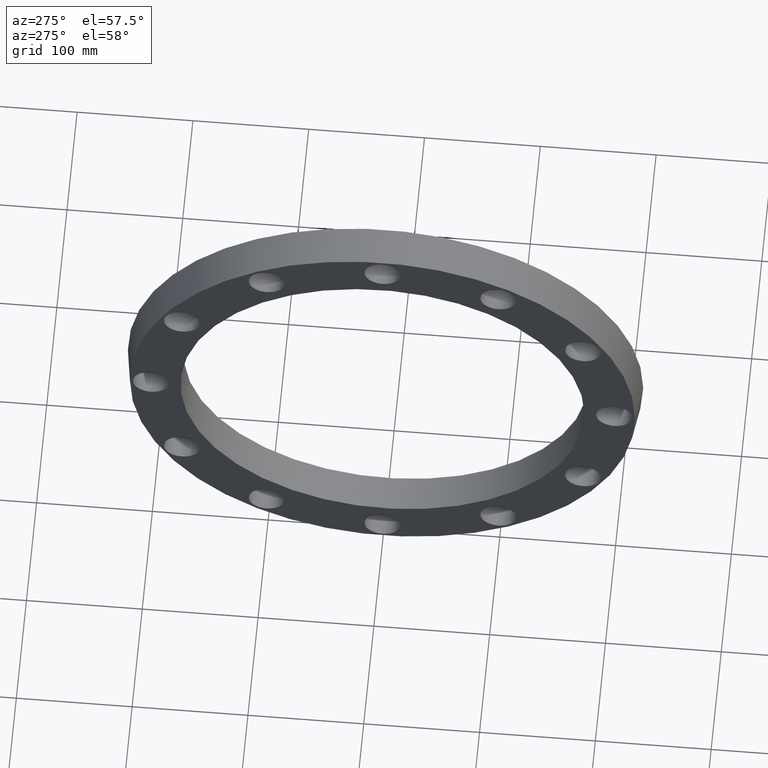
[diagram: clean part render]
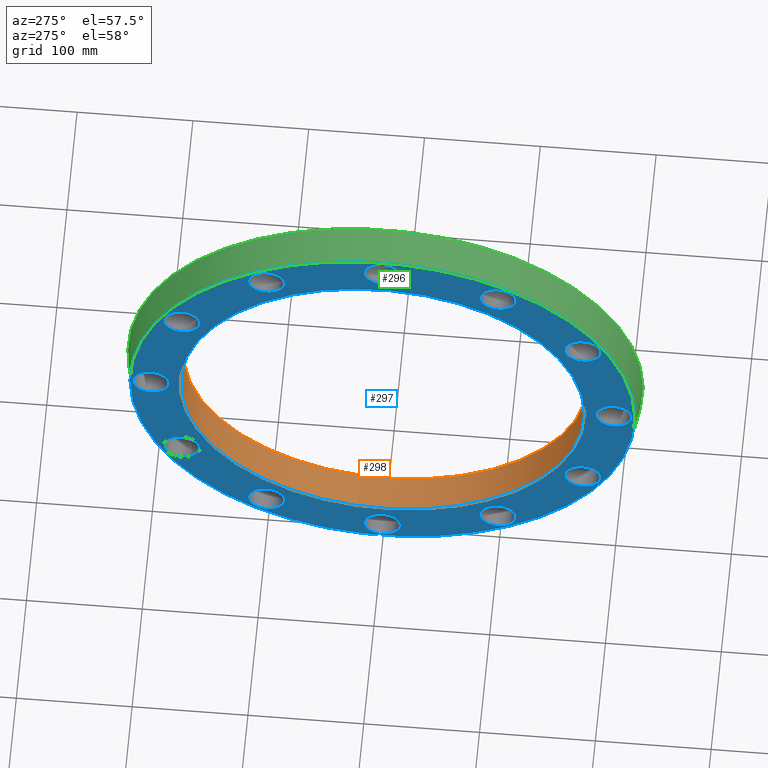
[diagram: same view with three faces highlighted in distinct colors, each labeled with its STEP entity id]
A machine part, auxiliary view with three faces highlighted in distinct colors.
Their STEP definitions:

[orange] entity #298 — the highlighted cylindrical surface (bore or boss wall) has radius 174.5 mm, axis along (-1, 0, 0).
#57=FACE_BOUND('',#129,.T.);
#73=FACE_OUTER_BOUND('',#128,.T.);
#128=EDGE_LOOP('',(#268));
#129=EDGE_LOOP('',(#269));
#155=CIRCLE('',#339,174.5);
#157=CIRCLE('',#343,174.5);
#183=VERTEX_POINT('',#499);
#185=VERTEX_POINT('',#505);
#211=EDGE_CURVE('',#183,#183,#155,.T.);
#213=EDGE_CURVE('',#185,#185,#157,.T.);
#268=ORIENTED_EDGE('',*,*,#211,.F.);
#269=ORIENTED_EDGE('',*,*,#213,.T.);
#282=CYLINDRICAL_SURFACE('',#344,174.5);
#298=ADVANCED_FACE('',(#73,#57),#282,.F.);
#339=AXIS2_PLACEMENT_3D('',#500,#423,#424);
#343=AXIS2_PLACEMENT_3D('',#506,#431,#432);
#344=AXIS2_PLACEMENT_3D('',#507,#433,#434);
#423=DIRECTION('center_axis',(-1.,0.,0.));
#424=DIRECTION('ref_axis',(0.,0.,1.));
#431=DIRECTION('center_axis',(-1.,0.,0.));
#432=DIRECTION('ref_axis',(0.,0.,1.));
#433=DIRECTION('center_axis',(-1.,0.,0.));
#434=DIRECTION('ref_axis',(0.,-1.,0.));
#499=CARTESIAN_POINT('',(15.5,-174.5,0.));
#500=CARTESIAN_POINT('Origin',(15.5,0.,0.));
#505=CARTESIAN_POINT('',(-15.5,-174.5,0.));
#506=CARTESIAN_POINT('Origin',(-15.5,0.,0.));
#507=CARTESIAN_POINT('Origin',(0.,0.,0.));

[blue] entity #297 — the highlighted planar face has unit normal (-1, 0, 0).
#17=PLANE('',#342);
#44=FACE_BOUND('',#115,.T.);
#45=FACE_BOUND('',#116,.T.);
#46=FACE_BOUND('',#117,.T.);
#47=FACE_BOUND('',#118,.T.);
#48=FACE_BOUND('',#119,.T.);
#49=FACE_BOUND('',#120,.T.);
#50=FACE_BOUND('',#121,.T.);
#51=FACE_BOUND('',#122,.T.);
#52=FACE_BOUND('',#123,.T.);
#53=FACE_BOUND('',#124,.T.);
#54=FACE_BOUND('',#125,.T.);
#55=FACE_BOUND('',#126,.T.);
#56=FACE_BOUND('',#127,.T.);
#72=FACE_OUTER_BOUND('',#114,.T.);
#114=EDGE_LOOP('',(#254));
#115=EDGE_LOOP('',(#255));
#116=EDGE_LOOP('',(#256));
#117=EDGE_LOOP('',(#257));
#118=EDGE_LOOP('',(#258));
#119=EDGE_LOOP('',(#259));
#120=EDGE_LOOP('',(#260));
#121=EDGE_LOOP('',(#261));
#122=EDGE_LOOP('',(#262));
#123=EDGE_LOOP('',(#263));
#124=EDGE_LOOP('',(#264));
#125=EDGE_LOOP('',(#265));
#126=EDGE_LOOP('',(#266));
#127=EDGE_LOOP('',(#267));
#130=CIRCLE('',#302,15.5);
#132=CIRCLE('',#305,15.5);
#134=CIRCLE('',#308,15.5);
#136=CIRCLE('',#311,15.5);
#138=CIRCLE('',#314,15.5);
#140=CIRCLE('',#317,15.5);
#142=CIRCLE('',#320,15.5);
#144=CIRCLE('',#323,15.5);
#146=CIRCLE('',#326,15.5);
#148=CIRCLE('',#329,15.5);
#150=CIRCLE('',#332,15.5);
#152=CIRCLE('',#335,15.5);
#156=CIRCLE('',#341,218.05);
#157=CIRCLE('',#343,174.5);
#158=VERTEX_POINT('',#437);
#160=VERTEX_POINT('',#442);
#162=VERTEX_POINT('',#447);
#164=VERTEX_POINT('',#452);
#166=VERTEX_POINT('',#457);
#168=VERTEX_POINT('',#462);
#170=VERTEX_POINT('',#467);
#172=VERTEX_POINT('',#472);
#174=VERTEX_POINT('',#477);
#176=VERTEX_POINT('',#482);
#178=VERTEX_POINT('',#487);
#180=VERTEX_POINT('',#492);
#184=VERTEX_POINT('',#502);
#185=VERTEX_POINT('',#505);
#186=EDGE_CURVE('',#158,#158,#130,.T.);
#188=EDGE_CURVE('',#160,#160,#132,.T.);
#190=EDGE_CURVE('',#162,#162,#134,.T.);
#192=EDGE_CURVE('',#164,#164,#136,.T.);
#194=EDGE_CURVE('',#166,#166,#138,.T.);
#196=EDGE_CURVE('',#168,#168,#140,.T.);
#198=EDGE_CURVE('',#170,#170,#142,.T.);
#200=EDGE_CURVE('',#172,#172,#144,.T.);
#202=EDGE_CURVE('',#174,#174,#146,.T.);
#204=EDGE_CURVE('',#176,#176,#148,.T.);
#206=EDGE_CURVE('',#178,#178,#150,.T.);
#208=EDGE_CURVE('',#180,#180,#152,.T.);
#212=EDGE_CURVE('',#184,#184,#156,.T.);
#213=EDGE_CURVE('',#185,#185,#157,.T.);
#254=ORIENTED_EDGE('',*,*,#212,.T.);
#255=ORIENTED_EDGE('',*,*,#186,.T.);
#256=ORIENTED_EDGE('',*,*,#188,.T.);
#257=ORIENTED_EDGE('',*,*,#190,.T.);
#258=ORIENTED_EDGE('',*,*,#192,.T.);
#259=ORIENTED_EDGE('',*,*,#194,.T.);
#260=ORIENTED_EDGE('',*,*,#196,.T.);
#261=ORIENTED_EDGE('',*,*,#198,.T.);
#262=ORIENTED_EDGE('',*,*,#200,.T.);
#263=ORIENTED_EDGE('',*,*,#202,.T.);
#264=ORIENTED_EDGE('',*,*,#204,.T.);
#265=ORIENTED_EDGE('',*,*,#206,.T.);
#266=ORIENTED_EDGE('',*,*,#208,.T.);
#267=ORIENTED_EDGE('',*,*,#213,.F.);
#297=ADVANCED_FACE('',(#72,#44,#45,#46,#47,#48,#49,#50,#51,#52,#53,#54,
#55,#56),#17,.T.);
#302=AXIS2_PLACEMENT_3D('',#438,#349,#350);
#305=AXIS2_PLACEMENT_3D('',#443,#355,#356);
#308=AXIS2_PLACEMENT_3D('',#448,#361,#362);
#311=AXIS2_PLACEMENT_3D('',#453,#367,#368);
#314=AXIS2_PLACEMENT_3D('',#458,#373,#374);
#317=AXIS2_PLACEMENT_3D('',#463,#379,#380);
#320=AXIS2_PLACEMENT_3D('',#468,#385,#386);
#323=AXIS2_PLACEMENT_3D('',#473,#391,#392);
#326=AXIS2_PLACEMENT_3D('',#478,#397,#398);
#329=AXIS2_PLACEMENT_3D('',#483,#403,#404);
#332=AXIS2_PLACEMENT_3D('',#488,#409,#410);
#335=AXIS2_PLACEMENT_3D('',#493,#415,#416);
#341=AXIS2_PLACEMENT_3D('',#503,#427,#428);
#342=AXIS2_PLACEMENT_3D('',#504,#429,#430);
#343=AXIS2_PLACEMENT_3D('',#506,#431,#432);
#349=DIRECTION('center_axis',(1.,0.,0.));
#350=DIRECTION('ref_axis',(0.,-0.5,0.866025403784438));
#355=DIRECTION('center_axis',(1.,0.,0.));
#356=DIRECTION('ref_axis',(0.,-0.866025403784439,0.499999999999999));
#361=DIRECTION('center_axis',(1.,0.,0.));
#362=DIRECTION('ref_axis',(0.,-1.,-2.14881875733901E-16));
#367=DIRECTION('center_axis',(1.,0.,0.));
#368=DIRECTION('ref_axis',(0.,-0.866025403784438,-0.5));
#373=DIRECTION('center_axis',(1.,0.,0.));
#374=DIRECTION('ref_axis',(0.,-0.5,-0.866025403784439));
#379=DIRECTION('center_axis',(1.,0.,0.));
#380=DIRECTION('ref_axis',(0.,7.16272919113004E-17,-1.));
#385=DIRECTION('center_axis',(1.,0.,0.));
#386=DIRECTION('ref_axis',(0.,0.5,-0.866025403784438));
#391=DIRECTION('center_axis',(1.,0.,0.));
#392=DIRECTION('ref_axis',(0.,0.866025403784439,-0.5));
#397=DIRECTION('center_axis',(1.,0.,0.));
#398=DIRECTION('ref_axis',(0.,1.,7.16272919113004E-17));
#403=DIRECTION('center_axis',(1.,0.,0.));
#404=DIRECTION('ref_axis',(0.,0.866025403784439,0.5));
#409=DIRECTION('center_axis',(1.,0.,0.));
#410=DIRECTION('ref_axis',(0.,0.5,0.866025403784439));
#415=DIRECTION('center_axis',(1.,0.,0.));
#416=DIRECTION('ref_axis',(0.,0.,1.));
#427=DIRECTION('center_axis',(-1.,0.,0.));
#428=DIRECTION('ref_axis',(0.,0.,1.));
#429=DIRECTION('center_axis',(-1.,0.,0.));
#430=DIRECTION('ref_axis',(0.,0.,1.));
#431=DIRECTION('center_axis',(-1.,0.,0.));
#432=DIRECTION('ref_axis',(0.,0.,1.));
#437=CARTESIAN_POINT('',(-15.5,180.955080756888,86.5766062413413));
#438=CARTESIAN_POINT('Origin',(-15.5,173.205080756888,100.));
#442=CARTESIAN_POINT('',(-15.5,113.423393758659,165.455080756888));
#443=CARTESIAN_POINT('Origin',(-15.5,99.9999999999999,173.205080756888));
#447=CARTESIAN_POINT('',(-15.5,15.4999999999999,200.));
#448=CARTESIAN_POINT('Origin',(-15.5,-5.32907051820075E-14,200.));
#452=CARTESIAN_POINT('',(-15.5,-86.5766062413413,180.955080756888));
#453=CARTESIAN_POINT('Origin',(-15.5,-100.,173.205080756888));
#457=CARTESIAN_POINT('',(-15.5,-165.455080756888,113.423393758659));
#458=CARTESIAN_POINT('Origin',(-15.5,-173.205080756888,99.9999999999999));
#462=CARTESIAN_POINT('',(-15.5,-200.,15.5));
#463=CARTESIAN_POINT('Origin',(-15.5,-200.,-3.5527136788005E-14));
#467=CARTESIAN_POINT('',(-15.5,-180.955080756888,-86.5766062413413));
#468=CARTESIAN_POINT('Origin',(-15.5,-173.205080756888,-100.));
#472=CARTESIAN_POINT('',(-15.5,-113.423393758659,-165.455080756888));
#473=CARTESIAN_POINT('Origin',(-15.5,-99.9999999999999,-173.205080756888));
#477=CARTESIAN_POINT('',(-15.5,-15.5,-200.));
#478=CARTESIAN_POINT('Origin',(-15.5,1.77635683940025E-14,-200.));
#482=CARTESIAN_POINT('',(-15.5,86.5766062413412,-180.955080756888));
#483=CARTESIAN_POINT('Origin',(-15.5,100.,-173.205080756888));
#487=CARTESIAN_POINT('',(-15.5,165.455080756888,-113.423393758659));
#488=CARTESIAN_POINT('Origin',(-15.5,173.205080756888,-100.));
#492=CARTESIAN_POINT('',(-15.5,200.,-15.5));
#493=CARTESIAN_POINT('Origin',(-15.5,200.,0.));
#502=CARTESIAN_POINT('',(-15.5,-218.05,0.));
#503=CARTESIAN_POINT('Origin',(-15.5,0.,0.));
#504=CARTESIAN_POINT('Origin',(-15.5,-174.5,0.));
#505=CARTESIAN_POINT('',(-15.5,-174.5,0.));
#506=CARTESIAN_POINT('Origin',(-15.5,0.,0.));

[green] entity #296 — the highlighted conical surface has half-angle 8.169 deg.
#15=CONICAL_SURFACE('',#340,220.275,8.16891186245391);
#43=FACE_BOUND('',#113,.T.);
#71=FACE_OUTER_BOUND('',#112,.T.);
#112=EDGE_LOOP('',(#252));
#113=EDGE_LOOP('',(#253));
#154=CIRCLE('',#338,222.5);
#156=CIRCLE('',#341,218.05);
#182=VERTEX_POINT('',#497);
#184=VERTEX_POINT('',#502);
#210=EDGE_CURVE('',#182,#182,#154,.T.);
#212=EDGE_CURVE('',#184,#184,#156,.T.);
#252=ORIENTED_EDGE('',*,*,#212,.F.);
#253=ORIENTED_EDGE('',*,*,#210,.T.);
#296=ADVANCED_FACE('',(#71,#43),#15,.T.);
#338=AXIS2_PLACEMENT_3D('',#498,#421,#422);
#340=AXIS2_PLACEMENT_3D('',#501,#425,#426);
#341=AXIS2_PLACEMENT_3D('',#503,#427,#428);
#421=DIRECTION('center_axis',(-1.,0.,0.));
#422=DIRECTION('ref_axis',(0.,0.,1.));
#425=DIRECTION('center_axis',(1.,0.,0.));
#426=DIRECTION('ref_axis',(0.,-1.,0.));
#427=DIRECTION('center_axis',(-1.,0.,0.));
#428=DIRECTION('ref_axis',(0.,0.,1.));
#497=CARTESIAN_POINT('',(15.5,-222.5,0.));
#498=CARTESIAN_POINT('Origin',(15.5,0.,0.));
#501=CARTESIAN_POINT('Origin',(2.66453525910038E-14,0.,0.));
#502=CARTESIAN_POINT('',(-15.5,-218.05,0.));
#503=CARTESIAN_POINT('Origin',(-15.5,0.,0.));